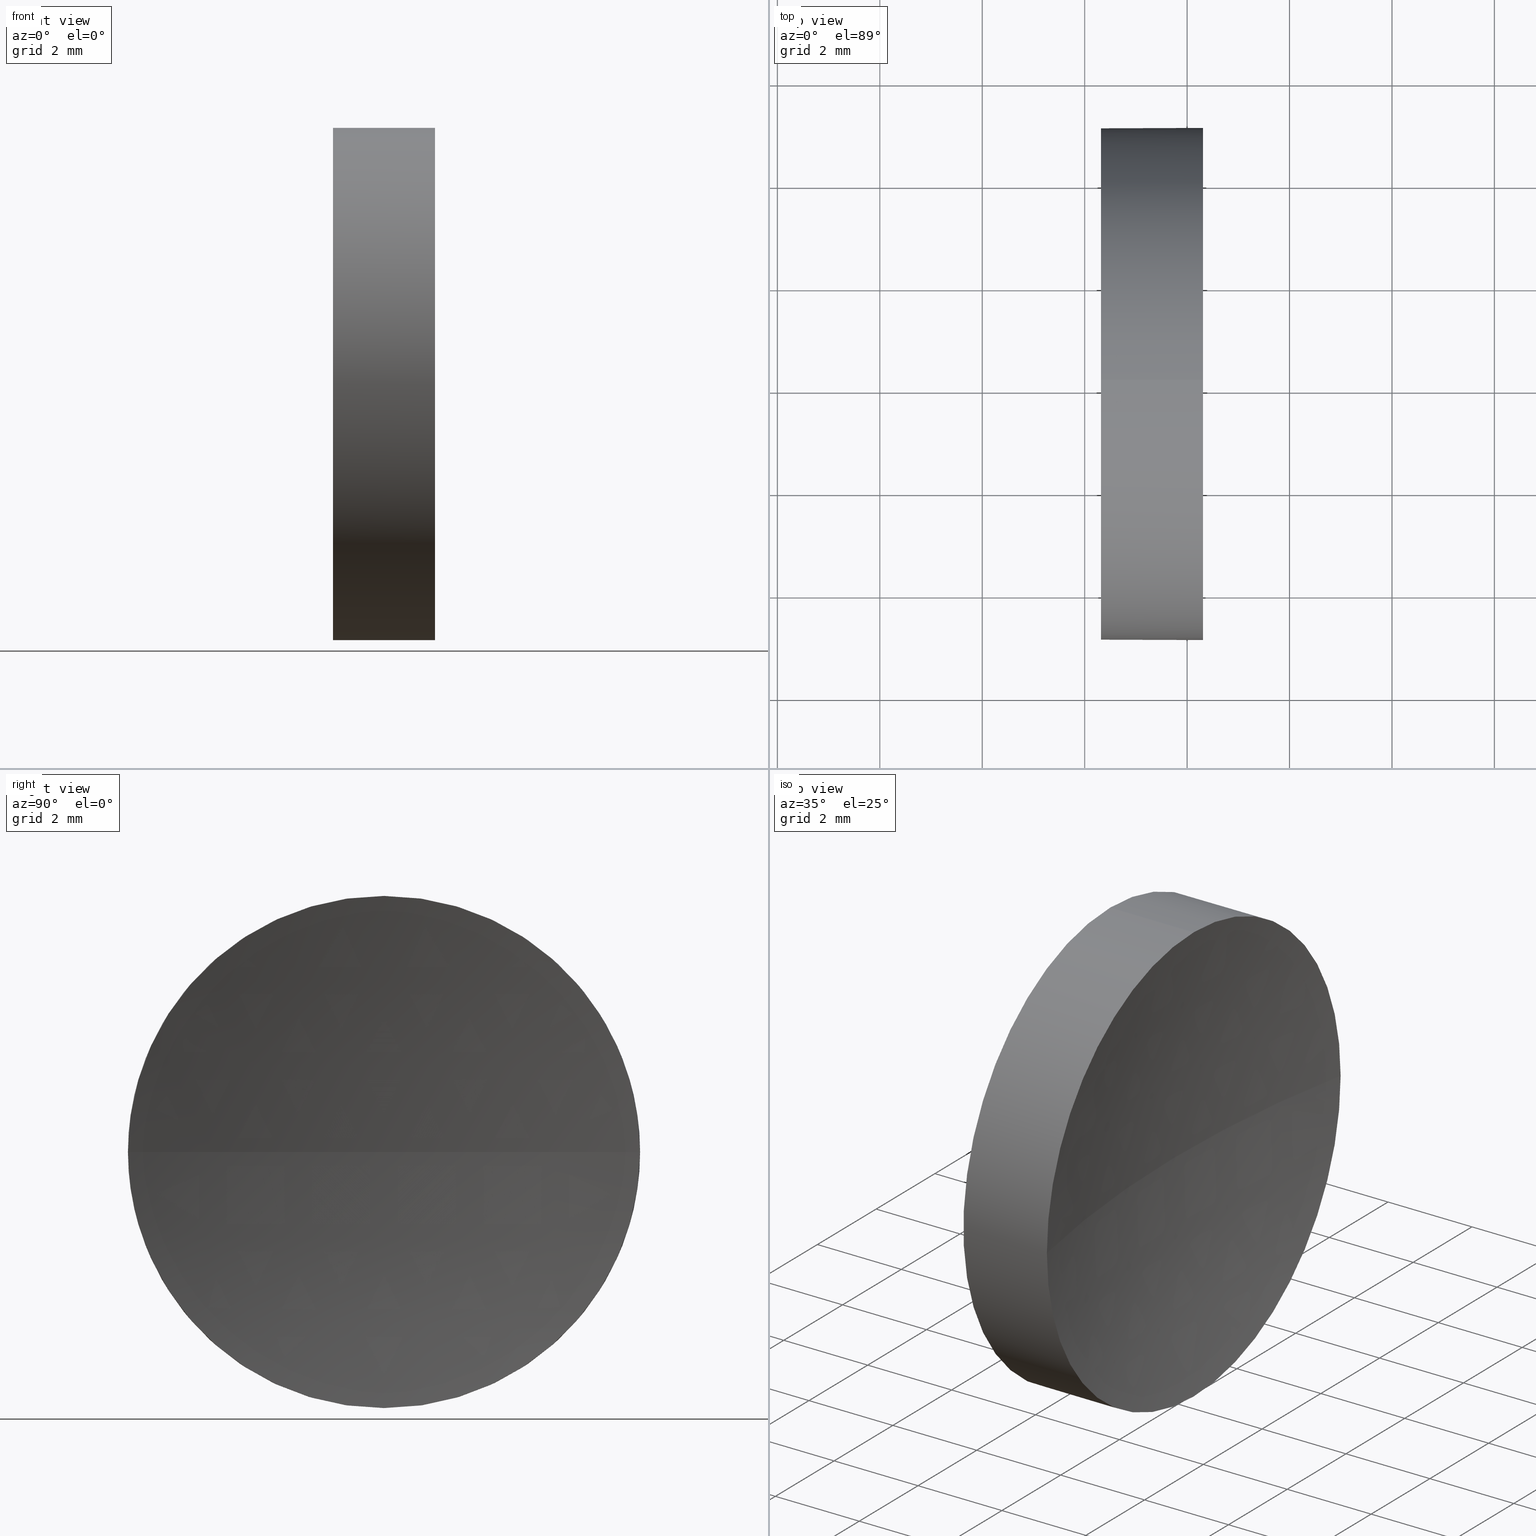
[diagram: canonical four-view strip — front | top / right | iso, engineering-drawing reading convention]
A machine part, canonical four-view strip (front | top / right | iso — engineering-drawing reading convention). The complete STEP part file that produces these views, byte-faithful:
ISO-10303-21;
HEADER;
FILE_DESCRIPTION (( 'STEP AP214' ),
    '1' );
FILE_NAME ('120016.STEP',
    '2019-06-14T05:44:18',
    ( '' ),
    ( '' ),
    'SwSTEP 2.0',
    'SolidWorks 2016',
    '' );
FILE_SCHEMA (( 'AUTOMOTIVE_DESIGN' ));
ENDSEC;

DATA;
#1 = STYLED_ITEM ( 'NONE', ( #63 ), #47 ) ;
#2 = DIRECTION ( 'NONE',  ( 0.0000000000000000000, 0.0000000000000000000, -1.000000000000000000 ) ) ;
#3 = EDGE_LOOP ( 'NONE', ( #177, #42 ) ) ;
#4 = FILL_AREA_STYLE ('',( #94 ) ) ;
#5 = AXIS2_PLACEMENT_3D ( 'NONE', #44, #24, #114 ) ;
#6 = ORIENTED_EDGE ( 'NONE', *, *, #85, .F. ) ;
#7 = SURFACE_STYLE_USAGE ( .BOTH. , #83 ) ;
#8 = CARTESIAN_POINT ( 'NONE',  ( 0.0000000000000000000, 0.0000000000000000000, 0.0000000000000000000 ) ) ;
#9 = FACE_OUTER_BOUND ( 'NONE', #34, .T. ) ;
#10 = DIRECTION ( 'NONE',  ( -1.000000000000000000, -0.0000000000000000000, -0.0000000000000000000 ) ) ;
#11 = CARTESIAN_POINT ( 'NONE',  ( 46.30958549791029800, 26.08904114919495900, 5.000000000000000900 ) ) ;
#12 = AXIS2_PLACEMENT_3D ( 'NONE', #53, #56, #111 ) ;
#13 = ORIENTED_EDGE ( 'NONE', *, *, #125, .F. ) ;
#14 = ADVANCED_FACE ( 'NONE', ( #33 ), #128, .F. ) ;
#15 = PRESENTATION_LAYER_ASSIGNMENT (  '', '', ( #90 ) ) ;
#16 = VERTEX_POINT ( 'NONE', #76 ) ;
#17 = COLOUR_RGB ( '',1.000000000000000000, 1.000000000000000000, 1.000000000000000000 ) ;
#18 = AXIS2_PLACEMENT_3D ( 'NONE', #86, #169, #55 ) ;
#19 = DIRECTION ( 'NONE',  ( 0.0000000000000000000, 0.0000000000000000000, 1.000000000000000000 ) ) ;
#20 = AXIS2_PLACEMENT_3D ( 'NONE', #181, #19, #39 ) ;
#21 = CARTESIAN_POINT ( 'NONE',  ( 46.30958549791029800, 26.08904114919495900, 0.0000000000000000000 ) ) ;
#22 = DIRECTION ( 'NONE',  ( -1.000000000000000000, -0.0000000000000000000, -0.0000000000000000000 ) ) ;
#23 = UNCERTAINTY_MEASURE_WITH_UNIT (LENGTH_MEASURE( 1.000000000000000100E-005 ), #145, 'distance_accuracy_value', 'NONE');
#24 = DIRECTION ( 'NONE',  ( -1.000000000000000000, -0.0000000000000000000, -0.0000000000000000000 ) ) ;
#25 =( NAMED_UNIT ( * ) SI_UNIT ( $, .STERADIAN. ) SOLID_ANGLE_UNIT ( ) );
#26 = VECTOR ( 'NONE', #135, 1000.000000000000000 ) ;
#27 = CLOSED_SHELL ( 'NONE', ( #74, #70, #176, #101, #14 ) ) ;
#28 = DIRECTION ( 'NONE',  ( 0.0000000000000000000, 0.0000000000000000000, 1.000000000000000000 ) ) ;
#29 = CARTESIAN_POINT ( 'NONE',  ( 46.30958549791029800, 26.08904114919495900, 0.0000000000000000000 ) ) ;
#30 = CARTESIAN_POINT ( 'NONE',  ( 46.30958549791029800, 21.08904114919496200, 0.0000000000000000000 ) ) ;
#31 = ORIENTED_EDGE ( 'NONE', *, *, #93, .T. ) ;
#32 = APPLICATION_PROTOCOL_DEFINITION ( 'draft international standard', 'automotive_design', 1998, #146 ) ;
#33 = FACE_OUTER_BOUND ( 'NONE', #3, .T. ) ;
#34 = EDGE_LOOP ( 'NONE', ( #117, #58, #89, #156, #6 ) ) ;
#35 = AXIS2_PLACEMENT_3D ( 'NONE', #126, #77, #109 ) ;
#36 = VERTEX_POINT ( 'NONE', #164 ) ;
#37 = SURFACE_STYLE_USAGE ( .BOTH. , #141 ) ;
#38 = PRESENTATION_STYLE_ASSIGNMENT (( #7 ) ) ;
#39 = DIRECTION ( 'NONE',  ( 0.0000000000000000000, -1.000000000000000000, 0.0000000000000000000 ) ) ;
#40 = DIRECTION ( 'NONE',  ( 1.000000000000000000, 0.0000000000000000000, 0.0000000000000000000 ) ) ;
#41 = CARTESIAN_POINT ( 'NONE',  ( 42.44986111413682300, 26.08904114919495900, 5.000000000000000900 ) ) ;
#42 = ORIENTED_EDGE ( 'NONE', *, *, #85, .T. ) ;
#43 = CARTESIAN_POINT ( 'NONE',  ( 42.44986111413682300, 26.08904114919495900, -5.000000000000000900 ) ) ;
#44 = CARTESIAN_POINT ( 'NONE',  ( 46.30958549791029800, 26.08904114919495900, 0.0000000000000000000 ) ) ;
#45 = APPLICATION_PROTOCOL_DEFINITION ( 'draft international standard', 'automotive_design', 1998, #182 ) ;
#46 = CIRCLE ( 'NONE', #18, 5.000000000000000900 ) ;
#47 = MANIFOLD_SOLID_BREP ( '��ת1', #27 ) ;
#48 = FACE_OUTER_BOUND ( 'NONE', #105, .T. ) ;
#49 = LINE ( 'NONE', #43, #118 ) ;
#50 = ORIENTED_EDGE ( 'NONE', *, *, #93, .F. ) ;
#51 = AXIS2_PLACEMENT_3D ( 'NONE', #54, #81, #170 ) ;
#52 = CARTESIAN_POINT ( 'NONE',  ( 42.44986111413682300, 26.08904114919495900, 0.0000000000000000000 ) ) ;
#53 = CARTESIAN_POINT ( 'NONE',  ( 44.31958549791029600, 26.08904114919495900, 0.0000000000000000000 ) ) ;
#54 = CARTESIAN_POINT ( 'NONE',  ( 71.57467329231487000, 26.08904114919495900, 0.0000000000000000000 ) ) ;
#55 = DIRECTION ( 'NONE',  ( 0.0000000000000000000, 0.0000000000000000000, 1.000000000000000000 ) ) ;
#56 = DIRECTION ( 'NONE',  ( -1.000000000000000000, -0.0000000000000000000, -0.0000000000000000000 ) ) ;
#57 = CIRCLE ( 'NONE', #12, 5.000000000000000900 ) ;
#58 = ORIENTED_EDGE ( 'NONE', *, *, #71, .T. ) ;
#59 = DIRECTION ( 'NONE',  ( 0.0000000000000000000, 0.0000000000000000000, 1.000000000000000000 ) ) ;
#60 =( LENGTH_UNIT ( ) NAMED_UNIT ( * ) SI_UNIT ( .MILLI., .METRE. ) );
#61 = AXIS2_PLACEMENT_3D ( 'NONE', #8, #28, #133 ) ;
#62 = VERTEX_POINT ( 'NONE', #143 ) ;
#63 = PRESENTATION_STYLE_ASSIGNMENT (( #37 ) ) ;
#64 = PRODUCT_DEFINITION ( 'δ֪', '', #100, #185 ) ;
#65 = EDGE_CURVE ( 'NONE', #150, #62, #78, .T. ) ;
#66 =( NAMED_UNIT ( * ) SI_UNIT ( $, .STERADIAN. ) SOLID_ANGLE_UNIT ( ) );
#67 = CARTESIAN_POINT ( 'NONE',  ( 46.30958549791029800, 26.08904114919495900, 0.0000000000000000000 ) ) ;
#68 = FACE_OUTER_BOUND ( 'NONE', #142, .T. ) ;
#69 = CIRCLE ( 'NONE', #51, 25.75509000681168500 ) ;
#70 = ADVANCED_FACE ( 'NONE', ( #48 ), #73, .F. ) ;
#71 = EDGE_CURVE ( 'NONE', #79, #150, #124, .T. ) ;
#72 = ORIENTED_EDGE ( 'NONE', *, *, #120, .T. ) ;
#73 = SPHERICAL_SURFACE ( 'NONE', #20, 25.75509000681168500 ) ;
#74 = ADVANCED_FACE ( 'NONE', ( #152 ), #134, .T. ) ;
#75 = DIRECTION ( 'NONE',  ( -1.000000000000000000, 0.0000000000000000000, 0.0000000000000000000 ) ) ;
#76 = CARTESIAN_POINT ( 'NONE',  ( 46.30958549791029800, 31.08904114919495500, 6.123233995736764300E-016 ) ) ;
#77 = DIRECTION ( 'NONE',  ( -1.000000000000000000, -0.0000000000000000000, -0.0000000000000000000 ) ) ;
#78 = CIRCLE ( 'NONE', #180, 25.75509000681168500 ) ;
#79 = VERTEX_POINT ( 'NONE', #127 ) ;
#80 = AXIS2_PLACEMENT_3D ( 'NONE', #144, #157, #147 ) ;
#81 = DIRECTION ( 'NONE',  ( 0.0000000000000000000, -1.224646799147353200E-016, 1.000000000000000000 ) ) ;
#82 = PRODUCT_CONTEXT ( 'NONE', #182, 'mechanical' ) ;
#83 = SURFACE_SIDE_STYLE ('',( #98 ) ) ;
#84 = CIRCLE ( 'NONE', #178, 5.000000000000000900 ) ;
#85 = EDGE_CURVE ( 'NONE', #87, #36, #57, .T. ) ;
#86 = CARTESIAN_POINT ( 'NONE',  ( 44.31958549791029600, 26.08904114919495900, 0.0000000000000000000 ) ) ;
#87 = VERTEX_POINT ( 'NONE', #110 ) ;
#88 = LINE ( 'NONE', #41, #26 ) ;
#89 = ORIENTED_EDGE ( 'NONE', *, *, #125, .T. ) ;
#90 = STYLED_ITEM ( 'NONE', ( #38 ), #162 ) ;
#91 = AXIS2_PLACEMENT_3D ( 'NONE', #29, #183, #96 ) ;
#92 =( LENGTH_UNIT ( ) NAMED_UNIT ( * ) SI_UNIT ( .MILLI., .METRE. ) );
#93 = EDGE_CURVE ( 'NONE', #16, #62, #69, .T. ) ;
#94 = FILL_AREA_STYLE_COLOUR ( '', #173 ) ;
#95 =( NAMED_UNIT ( * ) PLANE_ANGLE_UNIT ( ) SI_UNIT ( $, .RADIAN. ) );
#96 = DIRECTION ( 'NONE',  ( 0.0000000000000000000, 0.0000000000000000000, 1.000000000000000000 ) ) ;
#97 = EDGE_LOOP ( 'NONE', ( #72, #102, #153, #122, #121 ) ) ;
#98 = SURFACE_STYLE_FILL_AREA ( #131 ) ;
#99 = EDGE_CURVE ( 'NONE', #119, #36, #88, .T. ) ;
#100 = PRODUCT_DEFINITION_FORMATION_WITH_SPECIFIED_SOURCE ( '�κ�', '', #163, .NOT_KNOWN. ) ;
#101 = ADVANCED_FACE ( 'NONE', ( #9 ), #116, .T. ) ;
#102 = ORIENTED_EDGE ( 'NONE', *, *, #115, .T. ) ;
#103 = PRODUCT_DEFINITION_SHAPE ( 'NONE', 'NONE',  #64 ) ;
#104 = EDGE_CURVE ( 'NONE', #119, #16, #84, .T. ) ;
#105 = EDGE_LOOP ( 'NONE', ( #129, #31, #138, #140 ) ) ;
#106 = DIRECTION ( 'NONE',  ( 0.0000000000000000000, 0.0000000000000000000, 1.000000000000000000 ) ) ;
#107 = CIRCLE ( 'NONE', #5, 5.000000000000000900 ) ;
#108 = UNCERTAINTY_MEASURE_WITH_UNIT (LENGTH_MEASURE( 1.000000000000000100E-005 ), #60, 'distance_accuracy_value', 'NONE');
#109 = DIRECTION ( 'NONE',  ( 0.0000000000000000000, 0.0000000000000000000, 1.000000000000000000 ) ) ;
#110 = CARTESIAN_POINT ( 'NONE',  ( 44.31958549791029600, 26.08904114919495900, -5.000000000000000900 ) ) ;
#111 = DIRECTION ( 'NONE',  ( 0.0000000000000000000, 0.0000000000000000000, 1.000000000000000000 ) ) ;
#112 = UNCERTAINTY_MEASURE_WITH_UNIT (LENGTH_MEASURE( 1.000000000000000100E-005 ), #92, 'distance_accuracy_value', 'NONE');
#113 =( NAMED_UNIT ( * ) PLANE_ANGLE_UNIT ( ) SI_UNIT ( $, .RADIAN. ) );
#114 = DIRECTION ( 'NONE',  ( 0.0000000000000000000, 0.0000000000000000000, 1.000000000000000000 ) ) ;
#115 = EDGE_CURVE ( 'NONE', #79, #87, #49, .T. ) ;
#116 = CYLINDRICAL_SURFACE ( 'NONE', #186, 5.000000000000000900 ) ;
#117 = ORIENTED_EDGE ( 'NONE', *, *, #115, .F. ) ;
#118 = VECTOR ( 'NONE', #10, 1000.000000000000000 ) ;
#119 = VERTEX_POINT ( 'NONE', #11 ) ;
#120 = EDGE_CURVE ( 'NONE', #16, #79, #107, .T. ) ;
#121 = ORIENTED_EDGE ( 'NONE', *, *, #104, .T. ) ;
#122 = ORIENTED_EDGE ( 'NONE', *, *, #99, .F. ) ;
#123 = MECHANICAL_DESIGN_GEOMETRIC_PRESENTATION_REPRESENTATION (  '', ( #90 ), #174 ) ;
#124 = CIRCLE ( 'NONE', #167, 5.000000000000000900 ) ;
#125 = EDGE_CURVE ( 'NONE', #150, #119, #149, .T. ) ;
#126 = CARTESIAN_POINT ( 'NONE',  ( 42.44986111413682300, 26.08904114919495900, 0.0000000000000000000 ) ) ;
#127 = CARTESIAN_POINT ( 'NONE',  ( 46.30958549791029800, 26.08904114919495900, -5.000000000000000900 ) ) ;
#128 = PLANE ( 'NONE',  #171 ) ;
#129 = ORIENTED_EDGE ( 'NONE', *, *, #120, .F. ) ;
#130 = DIRECTION ( 'NONE',  ( -1.000000000000000000, -0.0000000000000000000, -0.0000000000000000000 ) ) ;
#131 = FILL_AREA_STYLE ('',( #168 ) ) ;
#132 = DIRECTION ( 'NONE',  ( 0.0000000000000000000, 0.0000000000000000000, 1.000000000000000000 ) ) ;
#133 = DIRECTION ( 'NONE',  ( 1.000000000000000000, 0.0000000000000000000, 0.0000000000000000000 ) ) ;
#134 = CYLINDRICAL_SURFACE ( 'NONE', #35, 5.000000000000000900 ) ;
#135 = DIRECTION ( 'NONE',  ( -1.000000000000000000, -0.0000000000000000000, -0.0000000000000000000 ) ) ;
#136 = PRESENTATION_LAYER_ASSIGNMENT (  '', '', ( #1 ) ) ;
#137 = PRODUCT_RELATED_PRODUCT_CATEGORY ( 'part', '', ( #163 ) ) ;
#138 = ORIENTED_EDGE ( 'NONE', *, *, #65, .F. ) ;
#139 = SHAPE_DEFINITION_REPRESENTATION ( #103, #162 ) ;
#140 = ORIENTED_EDGE ( 'NONE', *, *, #71, .F. ) ;
#141 = SURFACE_SIDE_STYLE ('',( #159 ) ) ;
#142 = EDGE_LOOP ( 'NONE', ( #50, #166, #13, #175 ) ) ;
#143 = CARTESIAN_POINT ( 'NONE',  ( 45.81958328550318500, 26.08904114919495900, 0.0000000000000000000 ) ) ;
#144 = CARTESIAN_POINT ( 'NONE',  ( 71.57467329231487000, 26.08904114919495900, 0.0000000000000000000 ) ) ;
#145 =( LENGTH_UNIT ( ) NAMED_UNIT ( * ) SI_UNIT ( .MILLI., .METRE. ) );
#146 = APPLICATION_CONTEXT ( 'automotive_design' ) ;
#147 = DIRECTION ( 'NONE',  ( 0.0000000000000000000, -1.000000000000000000, 0.0000000000000000000 ) ) ;
#148 =( GEOMETRIC_REPRESENTATION_CONTEXT ( 3 ) GLOBAL_UNCERTAINTY_ASSIGNED_CONTEXT ( ( #108 ) ) GLOBAL_UNIT_ASSIGNED_CONTEXT ( ( #60, #184, #66 ) ) REPRESENTATION_CONTEXT ( 'NONE', 'WORKASPACE' ) );
#149 = CIRCLE ( 'NONE', #91, 5.000000000000000900 ) ;
#150 = VERTEX_POINT ( 'NONE', #30 ) ;
#151 = EDGE_CURVE ( 'NONE', #36, #87, #46, .T. ) ;
#152 = FACE_OUTER_BOUND ( 'NONE', #97, .T. ) ;
#153 = ORIENTED_EDGE ( 'NONE', *, *, #151, .F. ) ;
#154 = CARTESIAN_POINT ( 'NONE',  ( 71.57467329231487000, 26.08904114919495900, 0.0000000000000000000 ) ) ;
#155 =( NAMED_UNIT ( * ) SI_UNIT ( $, .STERADIAN. ) SOLID_ANGLE_UNIT ( ) );
#156 = ORIENTED_EDGE ( 'NONE', *, *, #99, .T. ) ;
#157 = DIRECTION ( 'NONE',  ( 0.0000000000000000000, 0.0000000000000000000, 1.000000000000000000 ) ) ;
#158 = DIRECTION ( 'NONE',  ( -1.000000000000000000, -0.0000000000000000000, -0.0000000000000000000 ) ) ;
#159 = SURFACE_STYLE_FILL_AREA ( #4 ) ;
#160 =( GEOMETRIC_REPRESENTATION_CONTEXT ( 3 ) GLOBAL_UNCERTAINTY_ASSIGNED_CONTEXT ( ( #112 ) ) GLOBAL_UNIT_ASSIGNED_CONTEXT ( ( #92, #95, #155 ) ) REPRESENTATION_CONTEXT ( 'NONE', 'WORKASPACE' ) );
#161 = MECHANICAL_DESIGN_GEOMETRIC_PRESENTATION_REPRESENTATION (  '', ( #1 ), #160 ) ;
#162 = ADVANCED_BREP_SHAPE_REPRESENTATION ( '120016', ( #47, #61 ), #148 ) ;
#163 = PRODUCT ( '120016', '120016', '', ( #82 ) ) ;
#164 = CARTESIAN_POINT ( 'NONE',  ( 44.31958549791029600, 26.08904114919495900, 5.000000000000000900 ) ) ;
#165 = CARTESIAN_POINT ( 'NONE',  ( 44.31958549791029600, 26.08904114919495900, 0.0000000000000000000 ) ) ;
#166 = ORIENTED_EDGE ( 'NONE', *, *, #104, .F. ) ;
#167 = AXIS2_PLACEMENT_3D ( 'NONE', #21, #130, #106 ) ;
#168 = FILL_AREA_STYLE_COLOUR ( '', #17 ) ;
#169 = DIRECTION ( 'NONE',  ( -1.000000000000000000, -0.0000000000000000000, -0.0000000000000000000 ) ) ;
#170 = DIRECTION ( 'NONE',  ( 0.0000000000000000000, -1.000000000000000000, -1.224646799147353200E-016 ) ) ;
#171 = AXIS2_PLACEMENT_3D ( 'NONE', #165, #40, #2 ) ;
#172 = SPHERICAL_SURFACE ( 'NONE', #80, 25.75509000681168500 ) ;
#173 = COLOUR_RGB ( '',1.000000000000000000, 1.000000000000000000, 1.000000000000000000 ) ;
#174 =( GEOMETRIC_REPRESENTATION_CONTEXT ( 3 ) GLOBAL_UNCERTAINTY_ASSIGNED_CONTEXT ( ( #23 ) ) GLOBAL_UNIT_ASSIGNED_CONTEXT ( ( #145, #113, #25 ) ) REPRESENTATION_CONTEXT ( 'NONE', 'WORKASPACE' ) );
#175 = ORIENTED_EDGE ( 'NONE', *, *, #65, .T. ) ;
#176 = ADVANCED_FACE ( 'NONE', ( #68 ), #172, .F. ) ;
#177 = ORIENTED_EDGE ( 'NONE', *, *, #151, .T. ) ;
#178 = AXIS2_PLACEMENT_3D ( 'NONE', #67, #158, #132 ) ;
#179 = DIRECTION ( 'NONE',  ( 0.0000000000000000000, 0.0000000000000000000, -1.000000000000000000 ) ) ;
#180 = AXIS2_PLACEMENT_3D ( 'NONE', #154, #179, #75 ) ;
#181 = CARTESIAN_POINT ( 'NONE',  ( 71.57467329231487000, 26.08904114919495900, 0.0000000000000000000 ) ) ;
#182 = APPLICATION_CONTEXT ( 'automotive_design' ) ;
#183 = DIRECTION ( 'NONE',  ( -1.000000000000000000, -0.0000000000000000000, -0.0000000000000000000 ) ) ;
#184 =( NAMED_UNIT ( * ) PLANE_ANGLE_UNIT ( ) SI_UNIT ( $, .RADIAN. ) );
#185 = PRODUCT_DEFINITION_CONTEXT ( 'detailed design', #146, 'design' ) ;
#186 = AXIS2_PLACEMENT_3D ( 'NONE', #52, #22, #59 ) ;
ENDSEC;
END-ISO-10303-21;
